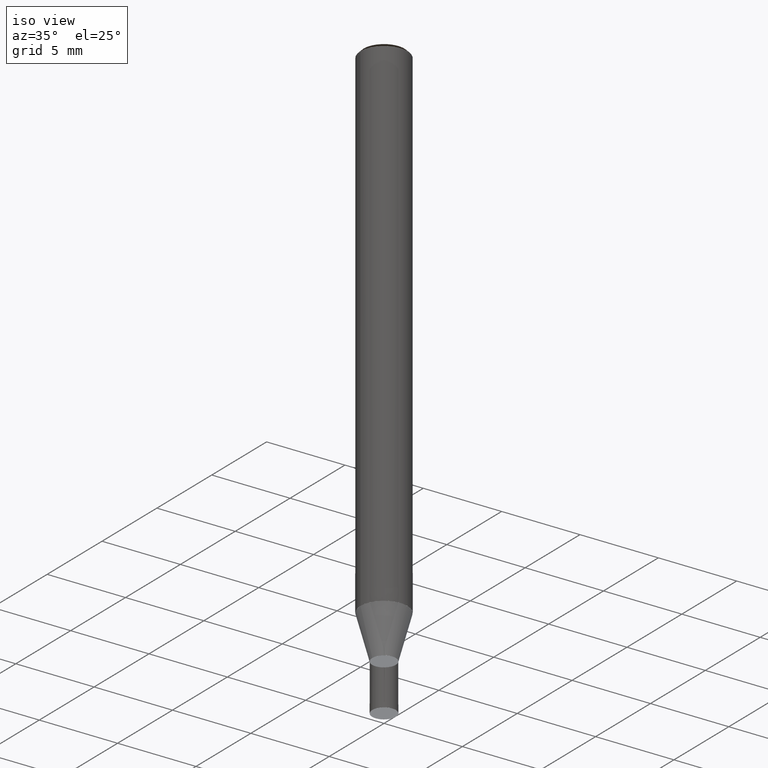
[diagram: clean part render]
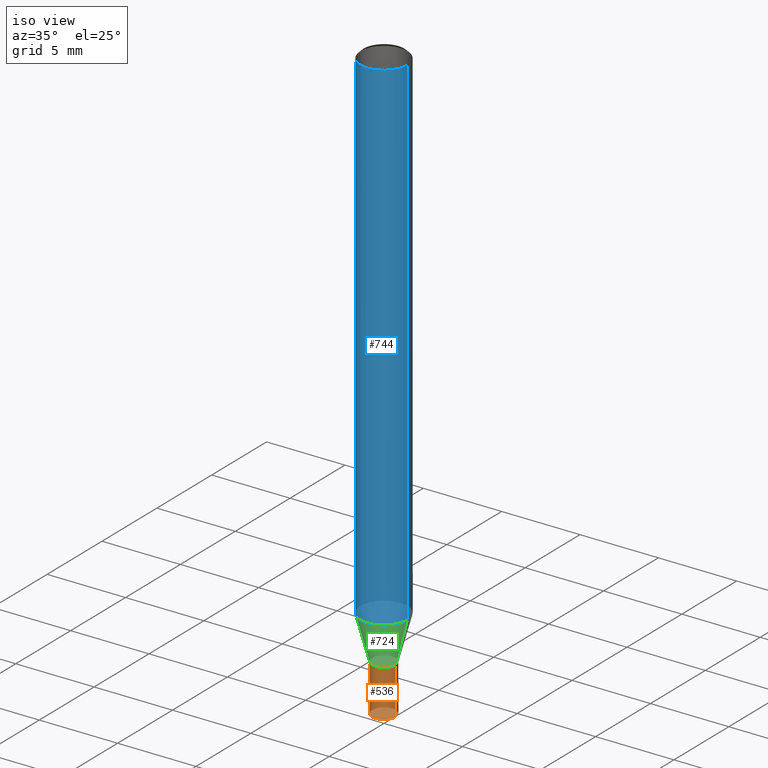
[diagram: same view with three faces highlighted in distinct colors, each labeled with its STEP entity id]
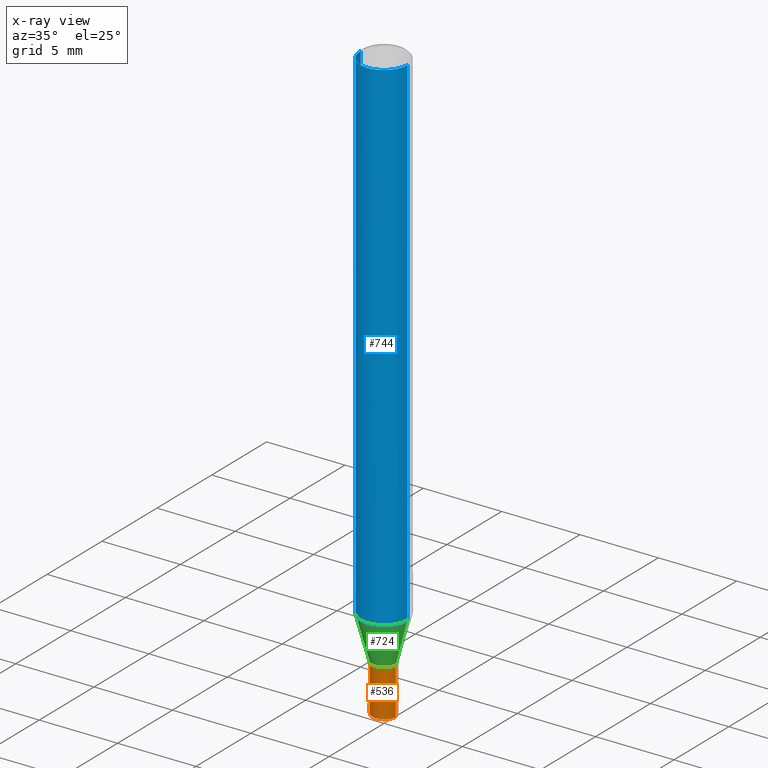
[diagram: x-ray of the same camera — body ghosted, the three highlighted faces saturated]
A machine part, iso view with three faces highlighted in distinct colors.
The next image is the same camera in x-ray (body ghosted, the three faces saturated) — at least one of them is partly hidden behind the body in this view.
Their STEP definitions:

[orange] entity #536 — the highlighted face is a freeform B-spline surface patch.
#109=CARTESIAN_POINT('',(0.0,-0.75,-5.8));
#394=CARTESIAN_POINT('',(0.75,0.0,-5.8));
#398=CARTESIAN_POINT('',(-0.75,0.0,-5.8));
#399=CARTESIAN_POINT('',(0.75,0.0,-2.8));
#403=CARTESIAN_POINT('',(-0.75,0.0,-2.8));
#405=CARTESIAN_POINT('',(-0.75,-0.75,-5.8));
#406=CARTESIAN_POINT('',(0.75,-0.75,-5.8));
#407=CARTESIAN_POINT('',(-0.75,-0.75,-2.8));
#408=CARTESIAN_POINT('',(0.0,-0.75,-2.8));
#409=CARTESIAN_POINT('',(0.75,-0.75,-2.8));
#517=(
BOUNDED_SURFACE()
B_SPLINE_SURFACE(1,2,(
(#398,#405,#109,#406,#394),
(#403,#407,#408,#409,#399)
), .UNSPECIFIED.,.F.,.F.,.F.)
B_SPLINE_SURFACE_WITH_KNOTS((2,2),(3,2,3),(
0.0,1.0),(
0.0,0.5,1.0), .UNSPECIFIED.)
GEOMETRIC_REPRESENTATION_ITEM()
RATIONAL_B_SPLINE_SURFACE(((1.0,0.707106781187,1.0,0.707106781187,1.0),
(1.0,0.707106781187,1.0,0.707106781187,1.0)
))
REPRESENTATION_ITEM('')
SURFACE()
);
#518=(
BOUNDED_CURVE()
B_SPLINE_CURVE(2,(#394,#406,#109,#405,#398),.UNSPECIFIED.,.F.,.F.)
B_SPLINE_CURVE_WITH_KNOTS((3,2,3),
(0.0,0.5,1.0),.UNSPECIFIED.)
CURVE()
GEOMETRIC_REPRESENTATION_ITEM()
RATIONAL_B_SPLINE_CURVE((1.0,0.707106781187,1.0,0.707106781187,1.0))
REPRESENTATION_ITEM('')
);
#519=(
BOUNDED_CURVE()
B_SPLINE_CURVE(1,(#398,#403),.UNSPECIFIED.,.F.,.F.)
B_SPLINE_CURVE_WITH_KNOTS((2,2),
(0.0,1.0),.UNSPECIFIED.)
CURVE()
GEOMETRIC_REPRESENTATION_ITEM()
RATIONAL_B_SPLINE_CURVE((1.0,1.0))
REPRESENTATION_ITEM('')
);
#520=(
BOUNDED_CURVE()
B_SPLINE_CURVE(2,(#403,#407,#408,#409,#399),.UNSPECIFIED.,.F.,.F.)
B_SPLINE_CURVE_WITH_KNOTS((3,2,3),
(0.0,0.5,1.0),.UNSPECIFIED.)
CURVE()
GEOMETRIC_REPRESENTATION_ITEM()
RATIONAL_B_SPLINE_CURVE((1.0,0.707106781187,1.0,0.707106781187,1.0))
REPRESENTATION_ITEM('')
);
#521=(
BOUNDED_CURVE()
B_SPLINE_CURVE(1,(#399,#394),.UNSPECIFIED.,.F.,.F.)
B_SPLINE_CURVE_WITH_KNOTS((2,2),
(0.0,1.0),.UNSPECIFIED.)
CURVE()
GEOMETRIC_REPRESENTATION_ITEM()
RATIONAL_B_SPLINE_CURVE((1.0,1.0))
REPRESENTATION_ITEM('')
);
#522=VERTEX_POINT('',#394);
#523=VERTEX_POINT('',#398);
#524=VERTEX_POINT('',#399);
#525=VERTEX_POINT('',#403);
#526=EDGE_CURVE('',#522,#523,#518,.T.);
#527=EDGE_CURVE('',#523,#525,#519,.T.);
#528=EDGE_CURVE('',#525,#524,#520,.T.);
#529=EDGE_CURVE('',#524,#522,#521,.T.);
#530=ORIENTED_EDGE('',*,*,#526,.T.);
#531=ORIENTED_EDGE('',*,*,#527,.T.);
#532=ORIENTED_EDGE('',*,*,#528,.T.);
#533=ORIENTED_EDGE('',*,*,#529,.T.);
#534=EDGE_LOOP('',(#530,#531,#532,#533));
#535=FACE_OUTER_BOUND('',#534,.T.);
#536=ADVANCED_FACE('',(#535),#517,.T.);

[blue] entity #744 — the highlighted face is a freeform B-spline surface patch.
#415=CARTESIAN_POINT('',(1.5,0.0,0.0));
#419=CARTESIAN_POINT('',(-1.5,0.0,0.0));
#420=CARTESIAN_POINT('',(1.5,0.0,32.0));
#424=CARTESIAN_POINT('',(-1.5,0.0,32.0));
#434=CARTESIAN_POINT('',(-1.5,-1.5,0.0));
#435=CARTESIAN_POINT('',(0.0,-1.5,0.0));
#436=CARTESIAN_POINT('',(1.5,-1.5,0.0));
#437=CARTESIAN_POINT('',(-1.5,-1.5,32.0));
#438=CARTESIAN_POINT('',(0.0,-1.5,32.0));
#439=CARTESIAN_POINT('',(1.5,-1.5,32.0));
#725=(
BOUNDED_SURFACE()
B_SPLINE_SURFACE(1,2,(
(#419,#434,#435,#436,#415),
(#424,#437,#438,#439,#420)
), .UNSPECIFIED.,.F.,.F.,.F.)
B_SPLINE_SURFACE_WITH_KNOTS((2,2),(3,2,3),(
0.0,1.0),(
0.0,0.5,1.0), .UNSPECIFIED.)
GEOMETRIC_REPRESENTATION_ITEM()
RATIONAL_B_SPLINE_SURFACE(((1.0,0.707106781187,1.0,0.707106781187,1.0),
(1.0,0.707106781187,1.0,0.707106781187,1.0)
))
REPRESENTATION_ITEM('')
SURFACE()
);
#726=(
BOUNDED_CURVE()
B_SPLINE_CURVE(2,(#415,#436,#435,#434,#419),.UNSPECIFIED.,.F.,.F.)
B_SPLINE_CURVE_WITH_KNOTS((3,2,3),
(0.0,0.5,1.0),.UNSPECIFIED.)
CURVE()
GEOMETRIC_REPRESENTATION_ITEM()
RATIONAL_B_SPLINE_CURVE((1.0,0.707106781187,1.0,0.707106781187,1.0))
REPRESENTATION_ITEM('')
);
#727=(
BOUNDED_CURVE()
B_SPLINE_CURVE(1,(#419,#424),.UNSPECIFIED.,.F.,.F.)
B_SPLINE_CURVE_WITH_KNOTS((2,2),
(0.0,1.0),.UNSPECIFIED.)
CURVE()
GEOMETRIC_REPRESENTATION_ITEM()
RATIONAL_B_SPLINE_CURVE((1.0,1.0))
REPRESENTATION_ITEM('')
);
#728=(
BOUNDED_CURVE()
B_SPLINE_CURVE(2,(#424,#437,#438,#439,#420),.UNSPECIFIED.,.F.,.F.)
B_SPLINE_CURVE_WITH_KNOTS((3,2,3),
(0.0,0.5,1.0),.UNSPECIFIED.)
CURVE()
GEOMETRIC_REPRESENTATION_ITEM()
RATIONAL_B_SPLINE_CURVE((1.0,0.707106781187,1.0,0.707106781187,1.0))
REPRESENTATION_ITEM('')
);
#729=(
BOUNDED_CURVE()
B_SPLINE_CURVE(1,(#420,#415),.UNSPECIFIED.,.F.,.F.)
B_SPLINE_CURVE_WITH_KNOTS((2,2),
(0.0,1.0),.UNSPECIFIED.)
CURVE()
GEOMETRIC_REPRESENTATION_ITEM()
RATIONAL_B_SPLINE_CURVE((1.0,1.0))
REPRESENTATION_ITEM('')
);
#730=VERTEX_POINT('',#415);
#731=VERTEX_POINT('',#419);
#732=VERTEX_POINT('',#420);
#733=VERTEX_POINT('',#424);
#734=EDGE_CURVE('',#730,#731,#726,.T.);
#735=EDGE_CURVE('',#731,#733,#727,.T.);
#736=EDGE_CURVE('',#733,#732,#728,.T.);
#737=EDGE_CURVE('',#732,#730,#729,.T.);
#738=ORIENTED_EDGE('',*,*,#734,.T.);
#739=ORIENTED_EDGE('',*,*,#735,.T.);
#740=ORIENTED_EDGE('',*,*,#736,.T.);
#741=ORIENTED_EDGE('',*,*,#737,.T.);
#742=EDGE_LOOP('',(#738,#739,#740,#741));
#743=FACE_OUTER_BOUND('',#742,.T.);
#744=ADVANCED_FACE('',(#743),#725,.T.);

[green] entity #724 — the highlighted face is a freeform B-spline surface patch.
#410=CARTESIAN_POINT('',(0.75,0.0,-2.799038105677));
#414=CARTESIAN_POINT('',(-0.75,0.0,-2.799038105677));
#415=CARTESIAN_POINT('',(1.5,0.0,0.0));
#419=CARTESIAN_POINT('',(-1.5,0.0,0.0));
#431=CARTESIAN_POINT('',(-0.75,-0.75,-2.799038105677));
#432=CARTESIAN_POINT('',(0.0,-0.75,-2.799038105677));
#433=CARTESIAN_POINT('',(0.75,-0.75,-2.799038105677));
#434=CARTESIAN_POINT('',(-1.5,-1.5,0.0));
#435=CARTESIAN_POINT('',(0.0,-1.5,0.0));
#436=CARTESIAN_POINT('',(1.5,-1.5,0.0));
#705=(
BOUNDED_SURFACE()
B_SPLINE_SURFACE(1,2,(
(#414,#431,#432,#433,#410),
(#419,#434,#435,#436,#415)
), .UNSPECIFIED.,.F.,.F.,.F.)
B_SPLINE_SURFACE_WITH_KNOTS((2,2),(3,2,3),(
0.0,1.0),(
0.0,0.5,1.0), .UNSPECIFIED.)
GEOMETRIC_REPRESENTATION_ITEM()
RATIONAL_B_SPLINE_SURFACE(((1.0,0.707106781187,1.0,0.707106781187,1.0),
(1.0,0.707106781187,1.0,0.707106781187,1.0)
))
REPRESENTATION_ITEM('')
SURFACE()
);
#706=(
BOUNDED_CURVE()
B_SPLINE_CURVE(2,(#410,#433,#432,#431,#414),.UNSPECIFIED.,.F.,.F.)
B_SPLINE_CURVE_WITH_KNOTS((3,2,3),
(0.0,0.5,1.0),.UNSPECIFIED.)
CURVE()
GEOMETRIC_REPRESENTATION_ITEM()
RATIONAL_B_SPLINE_CURVE((1.0,0.707106781187,1.0,0.707106781187,1.0))
REPRESENTATION_ITEM('')
);
#707=(
BOUNDED_CURVE()
B_SPLINE_CURVE(1,(#414,#419),.UNSPECIFIED.,.F.,.F.)
B_SPLINE_CURVE_WITH_KNOTS((2,2),
(0.0,1.0),.UNSPECIFIED.)
CURVE()
GEOMETRIC_REPRESENTATION_ITEM()
RATIONAL_B_SPLINE_CURVE((1.0,1.0))
REPRESENTATION_ITEM('')
);
#708=(
BOUNDED_CURVE()
B_SPLINE_CURVE(2,(#419,#434,#435,#436,#415),.UNSPECIFIED.,.F.,.F.)
B_SPLINE_CURVE_WITH_KNOTS((3,2,3),
(0.0,0.5,1.0),.UNSPECIFIED.)
CURVE()
GEOMETRIC_REPRESENTATION_ITEM()
RATIONAL_B_SPLINE_CURVE((1.0,0.707106781187,1.0,0.707106781187,1.0))
REPRESENTATION_ITEM('')
);
#709=(
BOUNDED_CURVE()
B_SPLINE_CURVE(1,(#415,#410),.UNSPECIFIED.,.F.,.F.)
B_SPLINE_CURVE_WITH_KNOTS((2,2),
(0.0,1.0),.UNSPECIFIED.)
CURVE()
GEOMETRIC_REPRESENTATION_ITEM()
RATIONAL_B_SPLINE_CURVE((1.0,1.0))
REPRESENTATION_ITEM('')
);
#710=VERTEX_POINT('',#410);
#711=VERTEX_POINT('',#414);
#712=VERTEX_POINT('',#415);
#713=VERTEX_POINT('',#419);
#714=EDGE_CURVE('',#710,#711,#706,.T.);
#715=EDGE_CURVE('',#711,#713,#707,.T.);
#716=EDGE_CURVE('',#713,#712,#708,.T.);
#717=EDGE_CURVE('',#712,#710,#709,.T.);
#718=ORIENTED_EDGE('',*,*,#714,.T.);
#719=ORIENTED_EDGE('',*,*,#715,.T.);
#720=ORIENTED_EDGE('',*,*,#716,.T.);
#721=ORIENTED_EDGE('',*,*,#717,.T.);
#722=EDGE_LOOP('',(#718,#719,#720,#721));
#723=FACE_OUTER_BOUND('',#722,.T.);
#724=ADVANCED_FACE('',(#723),#705,.T.);